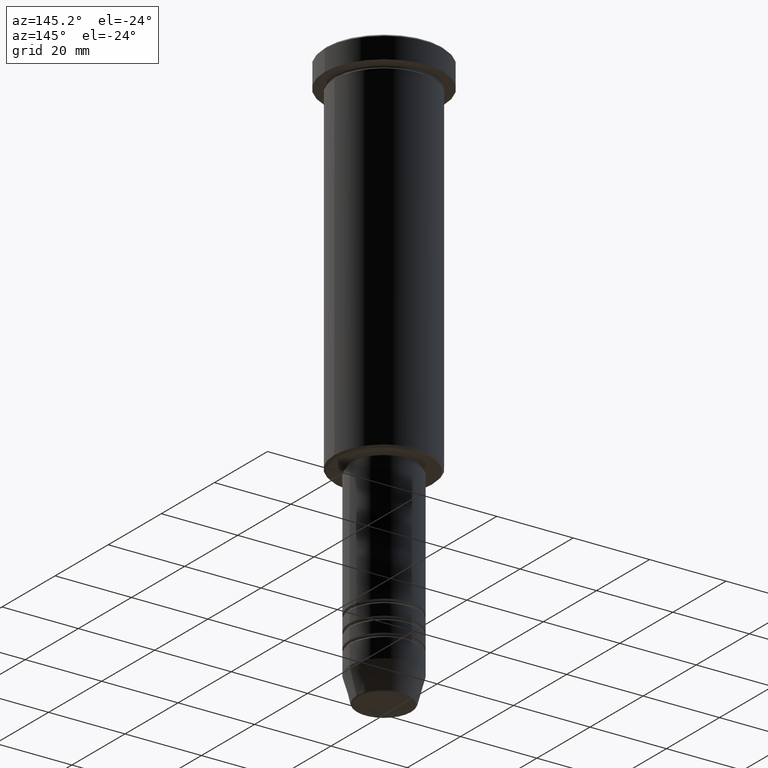
[diagram: clean part render]
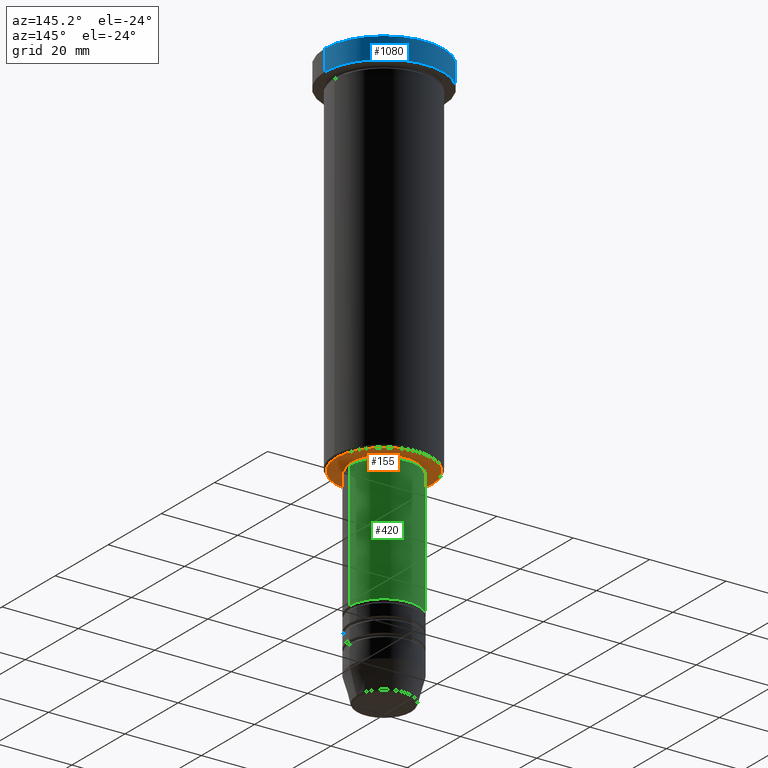
[diagram: same view with three faces highlighted in distinct colors, each labeled with its STEP entity id]
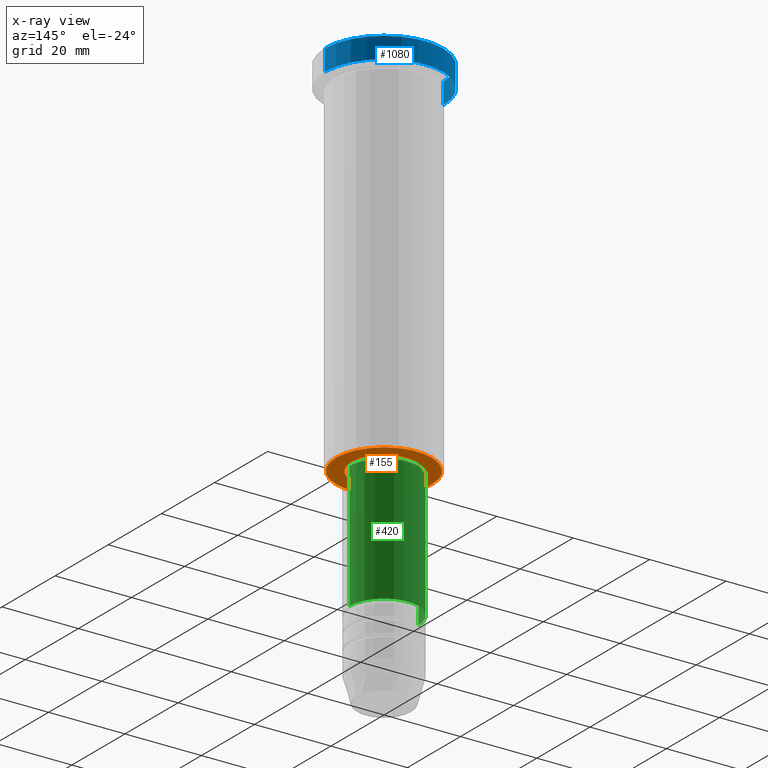
[diagram: x-ray of the same camera — body ghosted, the three highlighted faces saturated]
A machine part, auxiliary view with three faces highlighted in distinct colors.
The next image is the same camera in x-ray (body ghosted, the three faces saturated) — at least one of them is partly hidden behind the body in this view.
Their STEP definitions:

[orange] entity #155 — the highlighted planar face has unit normal (0, 0, -1).
#7 = CARTESIAN_POINT ( 'NONE',  ( 0.000000000000000000, 0.000000000000000000, -96.00000000000000000 ) ) ;
#26 = DIRECTION ( 'NONE',  ( 0.000000000000000000, 0.000000000000000000, -1.000000000000000000 ) ) ;
#27 = EDGE_CURVE ( 'NONE', #897, #727, #45, .T. ) ;
#45 = CIRCLE ( 'NONE', #1108, 8.500000000000000000 ) ;
#84 = AXIS2_PLACEMENT_3D ( 'NONE', #482, #26, #396 ) ;
#92 = CARTESIAN_POINT ( 'NONE',  ( 8.500000000000000000, 0.000000000000000000, -96.00000000000000000 ) ) ;
#114 = EDGE_CURVE ( 'NONE', #417, #234, #319, .T. ) ;
#141 = DIRECTION ( 'NONE',  ( 0.000000000000000000, 0.000000000000000000, -1.000000000000000000 ) ) ;
#155 = ADVANCED_FACE ( 'NONE', ( #911, #236 ), #599, .T. ) ;
#174 = DIRECTION ( 'NONE',  ( -1.000000000000000000, 0.000000000000000000, 0.000000000000000000 ) ) ;
#179 = CARTESIAN_POINT ( 'NONE',  ( 0.000000000000000000, 0.000000000000000000, -96.00000000000000000 ) ) ;
#202 = AXIS2_PLACEMENT_3D ( 'NONE', #728, #141, #508 ) ;
#234 = VERTEX_POINT ( 'NONE', #948 ) ;
#236 = FACE_BOUND ( 'NONE', #753, .T. ) ;
#319 = CIRCLE ( 'NONE', #84, 12.50000000000002487 ) ;
#396 = DIRECTION ( 'NONE',  ( -1.000000000000000000, 0.000000000000000000, 0.000000000000000000 ) ) ;
#417 = VERTEX_POINT ( 'NONE', #783 ) ;
#482 = CARTESIAN_POINT ( 'NONE',  ( 0.000000000000000000, 0.000000000000000000, -96.00000000000000000 ) ) ;
#500 = ORIENTED_EDGE ( 'NONE', *, *, #114, .T. ) ;
#508 = DIRECTION ( 'NONE',  ( -1.000000000000000000, 0.000000000000000000, -0.000000000000000000 ) ) ;
#530 = CIRCLE ( 'NONE', #860, 12.50000000000002487 ) ;
#538 = CARTESIAN_POINT ( 'NONE',  ( 0.000000000000000000, 0.000000000000000000, -96.00000000000000000 ) ) ;
#544 = DIRECTION ( 'NONE',  ( -0.000000000000000000, -0.000000000000000000, 1.000000000000000000 ) ) ;
#550 = ORIENTED_EDGE ( 'NONE', *, *, #27, .T. ) ;
#599 = PLANE ( 'NONE',  #202 ) ;
#602 = EDGE_CURVE ( 'NONE', #234, #417, #530, .T. ) ;
#616 = CARTESIAN_POINT ( 'NONE',  ( -8.500000000000000000, 1.040949779275250140E-15, -96.00000000000000000 ) ) ;
#714 = ORIENTED_EDGE ( 'NONE', *, *, #602, .T. ) ;
#727 = VERTEX_POINT ( 'NONE', #616 ) ;
#728 = CARTESIAN_POINT ( 'NONE',  ( 0.000000000000000000, 13.00000000000000000, -96.00000000000000000 ) ) ;
#753 = EDGE_LOOP ( 'NONE', ( #550, #776 ) ) ;
#776 = ORIENTED_EDGE ( 'NONE', *, *, #889, .T. ) ;
#783 = CARTESIAN_POINT ( 'NONE',  ( 12.50000000000002487, 0.000000000000000000, -96.00000000000000000 ) ) ;
#860 = AXIS2_PLACEMENT_3D ( 'NONE', #179, #1022, #174 ) ;
#889 = EDGE_CURVE ( 'NONE', #727, #897, #939, .T. ) ;
#897 = VERTEX_POINT ( 'NONE', #92 ) ;
#911 = FACE_OUTER_BOUND ( 'NONE', #971, .T. ) ;
#913 = DIRECTION ( 'NONE',  ( 1.000000000000000000, 0.000000000000000000, 0.000000000000000000 ) ) ;
#939 = CIRCLE ( 'NONE', #1162, 8.500000000000000000 ) ;
#948 = CARTESIAN_POINT ( 'NONE',  ( -12.50000000000002487, 1.561424668912876886E-15, -96.00000000000000000 ) ) ;
#971 = EDGE_LOOP ( 'NONE', ( #500, #714 ) ) ;
#982 = DIRECTION ( 'NONE',  ( 1.000000000000000000, 0.000000000000000000, 0.000000000000000000 ) ) ;
#1022 = DIRECTION ( 'NONE',  ( 0.000000000000000000, 0.000000000000000000, -1.000000000000000000 ) ) ;
#1035 = DIRECTION ( 'NONE',  ( -0.000000000000000000, -0.000000000000000000, 1.000000000000000000 ) ) ;
#1108 = AXIS2_PLACEMENT_3D ( 'NONE', #7, #1035, #982 ) ;
#1162 = AXIS2_PLACEMENT_3D ( 'NONE', #538, #544, #913 ) ;

[blue] entity #1080 — the highlighted cylindrical surface (partial cylindrical patch) has radius 15.5 mm, axis along (-0, -0, 1).
#23 = CARTESIAN_POINT ( 'NONE',  ( 0.000000000000000000, 0.000000000000000000, -5.999999999999995559 ) ) ;
#132 = DIRECTION ( 'NONE',  ( -0.000000000000000000, -0.000000000000000000, 1.000000000000000000 ) ) ;
#139 = VERTEX_POINT ( 'NONE', #820 ) ;
#163 = CIRCLE ( 'NONE', #245, 15.50000000000000000 ) ;
#194 = DIRECTION ( 'NONE',  ( -0.000000000000000000, -0.000000000000000000, 1.000000000000000000 ) ) ;
#212 = CARTESIAN_POINT ( 'NONE',  ( 15.50000000000000000, 0.000000000000000000, 0.000000000000000000 ) ) ;
#213 = CARTESIAN_POINT ( 'NONE',  ( 15.50000000000000000, 0.000000000000000000, -5.999999999999995559 ) ) ;
#245 = AXIS2_PLACEMENT_3D ( 'NONE', #23, #132, #850 ) ;
#318 = EDGE_CURVE ( 'NONE', #389, #970, #163, .T. ) ;
#360 = EDGE_LOOP ( 'NONE', ( #620, #990, #603, #447 ) ) ;
#383 = CARTESIAN_POINT ( 'NONE',  ( -15.50000000000000000, 1.898202538678397557E-15, -0.5000000000000264233 ) ) ;
#389 = VERTEX_POINT ( 'NONE', #213 ) ;
#390 = CYLINDRICAL_SURFACE ( 'NONE', #994, 15.50000000000000000 ) ;
#398 = VECTOR ( 'NONE', #575, 1000.000000000000000 ) ;
#435 = CIRCLE ( 'NONE', #1128, 15.50000000000000000 ) ;
#447 = ORIENTED_EDGE ( 'NONE', *, *, #1038, .F. ) ;
#562 = CARTESIAN_POINT ( 'NONE',  ( 0.000000000000000000, 0.000000000000000000, 0.000000000000000000 ) ) ;
#575 = DIRECTION ( 'NONE',  ( -0.000000000000000000, -0.000000000000000000, 1.000000000000000000 ) ) ;
#593 = DIRECTION ( 'NONE',  ( 0.000000000000000000, 0.000000000000000000, -1.000000000000000000 ) ) ;
#598 = CARTESIAN_POINT ( 'NONE',  ( 0.000000000000000000, 0.000000000000000000, -0.5000000000000264233 ) ) ;
#603 = ORIENTED_EDGE ( 'NONE', *, *, #737, .T. ) ;
#620 = ORIENTED_EDGE ( 'NONE', *, *, #318, .T. ) ;
#668 = FACE_OUTER_BOUND ( 'NONE', #360, .T. ) ;
#696 = VERTEX_POINT ( 'NONE', #383 ) ;
#737 = EDGE_CURVE ( 'NONE', #696, #139, #435, .T. ) ;
#820 = CARTESIAN_POINT ( 'NONE',  ( 15.50000000000000000, 0.000000000000000000, -0.5000000000000264233 ) ) ;
#821 = VECTOR ( 'NONE', #194, 1000.000000000000000 ) ;
#847 = LINE ( 'NONE', #212, #398 ) ;
#850 = DIRECTION ( 'NONE',  ( 1.000000000000000000, 0.000000000000000000, 0.000000000000000000 ) ) ;
#934 = DIRECTION ( 'NONE',  ( -0.000000000000000000, -0.000000000000000000, 1.000000000000000000 ) ) ;
#943 = DIRECTION ( 'NONE',  ( 1.000000000000000000, 0.000000000000000000, 0.000000000000000000 ) ) ;
#964 = DIRECTION ( 'NONE',  ( 1.000000000000000000, 0.000000000000000000, 0.000000000000000000 ) ) ;
#970 = VERTEX_POINT ( 'NONE', #1000 ) ;
#990 = ORIENTED_EDGE ( 'NONE', *, *, #1158, .T. ) ;
#994 = AXIS2_PLACEMENT_3D ( 'NONE', #562, #934, #943 ) ;
#1000 = CARTESIAN_POINT ( 'NONE',  ( -15.50000000000000000, 1.898202538678397557E-15, -5.999999999999995559 ) ) ;
#1030 = CARTESIAN_POINT ( 'NONE',  ( -15.50000000000000000, 1.898202538678397557E-15, 0.000000000000000000 ) ) ;
#1036 = LINE ( 'NONE', #1030, #821 ) ;
#1038 = EDGE_CURVE ( 'NONE', #389, #139, #847, .T. ) ;
#1080 = ADVANCED_FACE ( 'NONE', ( #668 ), #390, .T. ) ;
#1128 = AXIS2_PLACEMENT_3D ( 'NONE', #598, #593, #964 ) ;
#1158 = EDGE_CURVE ( 'NONE', #970, #696, #1036, .T. ) ;

[green] entity #420 — the highlighted cylindrical surface (partial cylindrical patch) has radius 9 mm, axis along (-0, -0, 1).
#32 = VERTEX_POINT ( 'NONE', #156 ) ;
#95 = EDGE_CURVE ( 'NONE', #394, #32, #584, .T. ) ;
#136 = CARTESIAN_POINT ( 'NONE',  ( 9.000000000000001776, 0.000000000000000000, -129.9999999999998863 ) ) ;
#144 = DIRECTION ( 'NONE',  ( -0.000000000000000000, -0.000000000000000000, 1.000000000000000000 ) ) ;
#156 = CARTESIAN_POINT ( 'NONE',  ( -9.000000000000001776, 1.102182119232617911E-15, -129.9999999999998863 ) ) ;
#314 = DIRECTION ( 'NONE',  ( -0.000000000000000000, -0.000000000000000000, 1.000000000000000000 ) ) ;
#316 = DIRECTION ( 'NONE',  ( -0.000000000000000000, -0.000000000000000000, 1.000000000000000000 ) ) ;
#320 = AXIS2_PLACEMENT_3D ( 'NONE', #700, #805, #1076 ) ;
#332 = FACE_OUTER_BOUND ( 'NONE', #1060, .T. ) ;
#352 = LINE ( 'NONE', #1097, #651 ) ;
#353 = EDGE_CURVE ( 'NONE', #394, #724, #672, .T. ) ;
#394 = VERTEX_POINT ( 'NONE', #136 ) ;
#420 = ADVANCED_FACE ( 'NONE', ( #332 ), #629, .T. ) ;
#421 = DIRECTION ( 'NONE',  ( 1.000000000000000000, 0.000000000000000000, 0.000000000000000000 ) ) ;
#506 = EDGE_CURVE ( 'NONE', #724, #1129, #1160, .T. ) ;
#581 = CARTESIAN_POINT ( 'NONE',  ( 0.000000000000000000, 0.000000000000000000, -129.9999999999998863 ) ) ;
#584 = CIRCLE ( 'NONE', #1124, 9.000000000000001776 ) ;
#629 = CYLINDRICAL_SURFACE ( 'NONE', #320, 9.000000000000000000 ) ;
#651 = VECTOR ( 'NONE', #1183, 1000.000000000000000 ) ;
#672 = LINE ( 'NONE', #1139, #837 ) ;
#700 = CARTESIAN_POINT ( 'NONE',  ( 0.000000000000000000, 0.000000000000000000, 0.000000000000000000 ) ) ;
#724 = VERTEX_POINT ( 'NONE', #1050 ) ;
#805 = DIRECTION ( 'NONE',  ( -0.000000000000000000, -0.000000000000000000, 1.000000000000000000 ) ) ;
#837 = VECTOR ( 'NONE', #316, 1000.000000000000000 ) ;
#874 = DIRECTION ( 'NONE',  ( 1.000000000000000000, 0.000000000000000000, 0.000000000000000000 ) ) ;
#947 = EDGE_CURVE ( 'NONE', #32, #1129, #352, .T. ) ;
#962 = ORIENTED_EDGE ( 'NONE', *, *, #353, .F. ) ;
#1050 = CARTESIAN_POINT ( 'NONE',  ( 8.999999999999998224, 0.000000000000000000, -97.00000000000000000 ) ) ;
#1060 = EDGE_LOOP ( 'NONE', ( #1095, #1147, #1170, #962 ) ) ;
#1076 = DIRECTION ( 'NONE',  ( 1.000000000000000000, 0.000000000000000000, 0.000000000000000000 ) ) ;
#1092 = AXIS2_PLACEMENT_3D ( 'NONE', #1154, #144, #421 ) ;
#1095 = ORIENTED_EDGE ( 'NONE', *, *, #95, .T. ) ;
#1097 = CARTESIAN_POINT ( 'NONE',  ( -9.000000000000000000, 1.102182119232617714E-15, 0.000000000000000000 ) ) ;
#1112 = CARTESIAN_POINT ( 'NONE',  ( -8.999999999999998224, 1.102182119232617714E-15, -97.00000000000000000 ) ) ;
#1124 = AXIS2_PLACEMENT_3D ( 'NONE', #581, #314, #874 ) ;
#1129 = VERTEX_POINT ( 'NONE', #1112 ) ;
#1139 = CARTESIAN_POINT ( 'NONE',  ( 9.000000000000000000, 0.000000000000000000, 0.000000000000000000 ) ) ;
#1147 = ORIENTED_EDGE ( 'NONE', *, *, #947, .T. ) ;
#1154 = CARTESIAN_POINT ( 'NONE',  ( 0.000000000000000000, 0.000000000000000000, -97.00000000000000000 ) ) ;
#1160 = CIRCLE ( 'NONE', #1092, 8.999999999999998224 ) ;
#1170 = ORIENTED_EDGE ( 'NONE', *, *, #506, .F. ) ;
#1183 = DIRECTION ( 'NONE',  ( -0.000000000000000000, -0.000000000000000000, 1.000000000000000000 ) ) ;